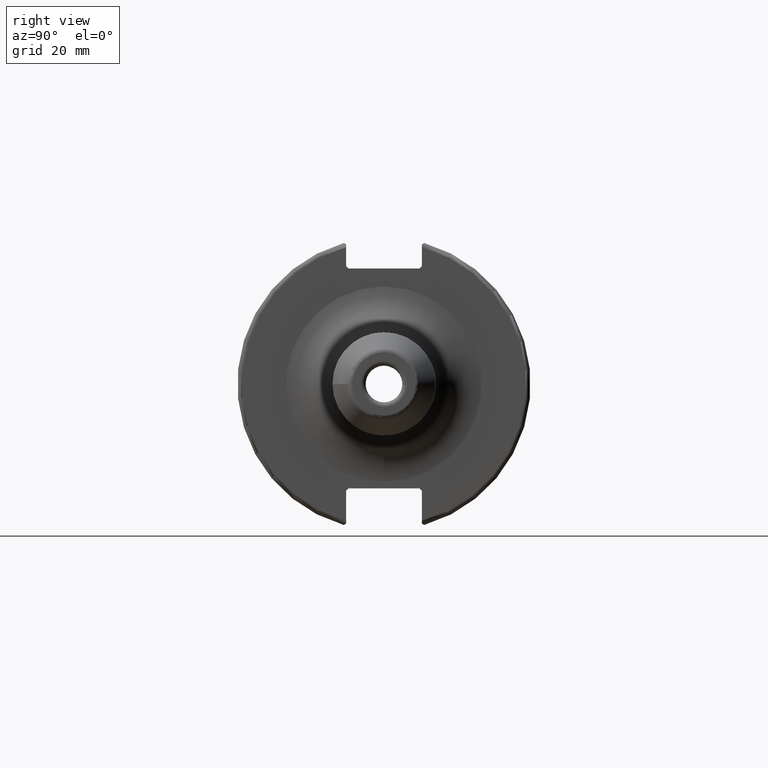
[diagram: clean part render]
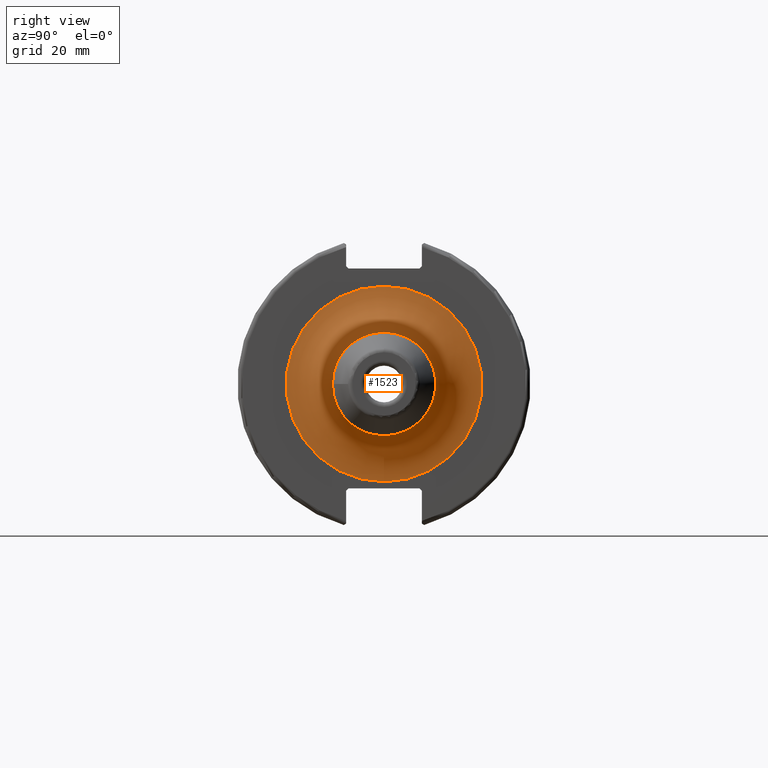
[diagram: same view with one face highlighted and labeled with its STEP entity id]
A machine part, right view. The second image highlights one B-rep face of the part: STEP entity #1523.
In plain terms, the highlighted toroidal blend (fillet) surface has major radius 21.176 mm and minor (blend) radius 10 mm.
Its self-contained STEP definition (entity closure, byte-faithful):
#371=FACE_OUTER_BOUND('',#461,.T.);
#461=EDGE_LOOP('',(#1068,#1069,#1070,#1071,#1072));
#569=CIRCLE('',#1648,11.176);
#570=CIRCLE('',#1649,11.176);
#571=CIRCLE('',#1651,10.);
#572=CIRCLE('',#1652,21.176);
#645=VERTEX_POINT('',#2351);
#646=VERTEX_POINT('',#2353);
#649=VERTEX_POINT('',#2396);
#809=EDGE_CURVE('',#646,#645,#569,.T.);
#810=EDGE_CURVE('',#645,#646,#570,.T.);
#813=EDGE_CURVE('',#646,#649,#571,.T.);
#814=EDGE_CURVE('',#649,#649,#572,.T.);
#1068=ORIENTED_EDGE('',*,*,#810,.T.);
#1069=ORIENTED_EDGE('',*,*,#813,.T.);
#1070=ORIENTED_EDGE('',*,*,#814,.T.);
#1071=ORIENTED_EDGE('',*,*,#813,.F.);
#1072=ORIENTED_EDGE('',*,*,#809,.T.);
#1509=TOROIDAL_SURFACE('',#1650,21.176,10.);
#1523=ADVANCED_FACE('',(#371),#1509,.F.);
#1648=AXIS2_PLACEMENT_3D('',#2354,#1857,#1858);
#1649=AXIS2_PLACEMENT_3D('',#2355,#1859,#1860);
#1650=AXIS2_PLACEMENT_3D('',#2395,#1861,#1862);
#1651=AXIS2_PLACEMENT_3D('',#2397,#1863,#1864);
#1652=AXIS2_PLACEMENT_3D('',#2398,#1865,#1866);
#1857=DIRECTION('center_axis',(-1.,0.,0.));
#1858=DIRECTION('ref_axis',(0.,-1.,-1.22464679914735E-16));
#1859=DIRECTION('center_axis',(-1.,0.,0.));
#1860=DIRECTION('ref_axis',(0.,-1.,-1.22464679914735E-16));
#1861=DIRECTION('center_axis',(-1.,0.,0.));
#1862=DIRECTION('ref_axis',(0.,0.,1.));
#1863=DIRECTION('center_axis',(0.,-1.,1.22464679914735E-16));
#1864=DIRECTION('ref_axis',(0.,-1.22464679914735E-16,-1.));
#1865=DIRECTION('center_axis',(1.,0.,0.));
#1866=DIRECTION('ref_axis',(0.,-1.,-1.22464679914735E-16));
#2351=CARTESIAN_POINT('',(29.05,-11.176,-1.36866526272708E-15));
#2353=CARTESIAN_POINT('',(29.05,-1.36866526272708E-15,-11.176));
#2354=CARTESIAN_POINT('Origin',(29.05,0.,0.));
#2355=CARTESIAN_POINT('Origin',(29.05,0.,0.));
#2395=CARTESIAN_POINT('Origin',(29.05,0.,0.));
#2396=CARTESIAN_POINT('',(19.05,-2.59331206187443E-15,-21.176));
#2397=CARTESIAN_POINT('Origin',(29.05,-2.59331206187443E-15,-21.176));
#2398=CARTESIAN_POINT('Origin',(19.05,0.,0.));